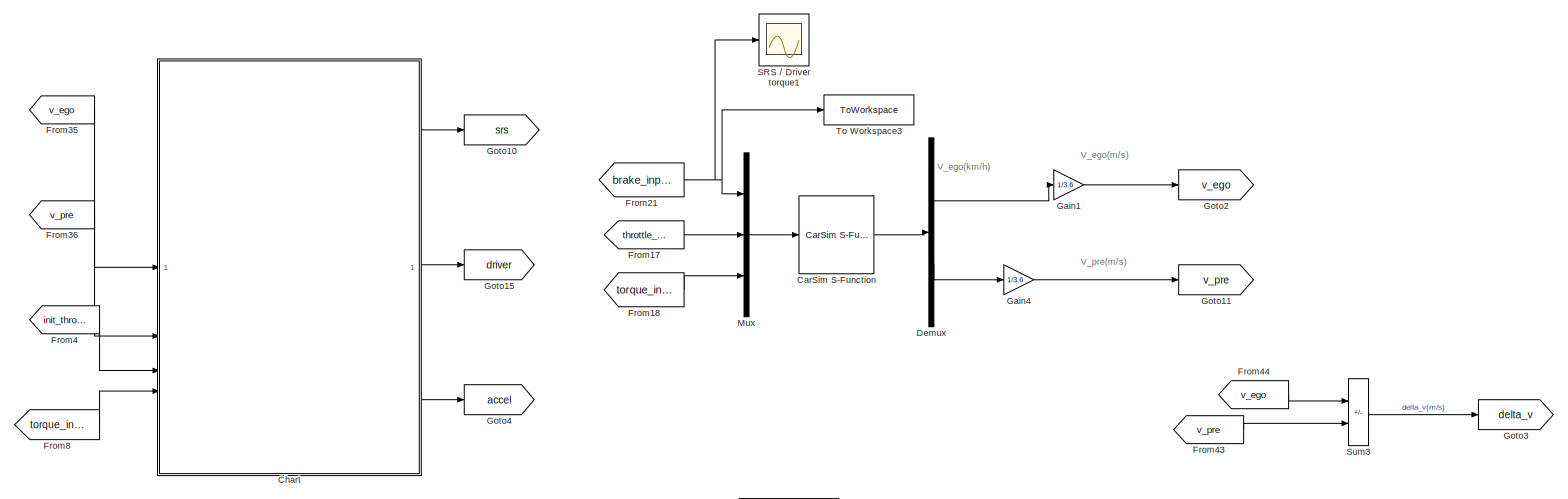
[diagram: root canvas - part 1/3, full width, top band]
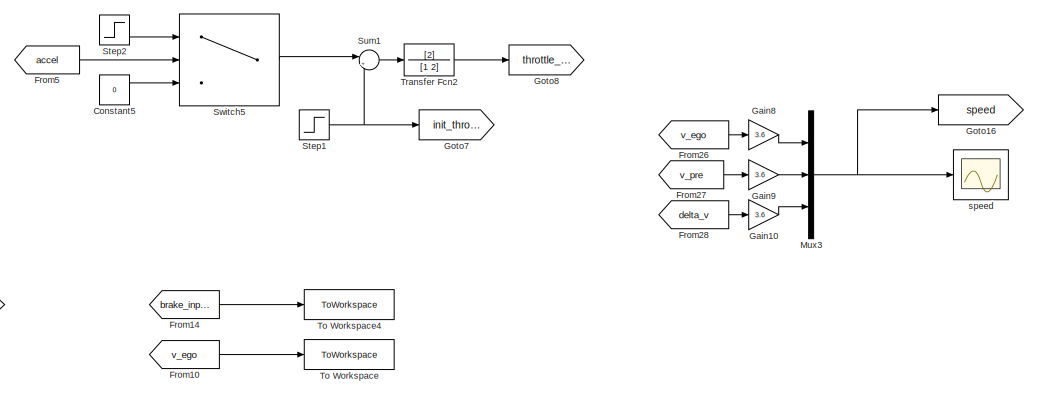
[diagram: root canvas - part 2/3, middle right region]
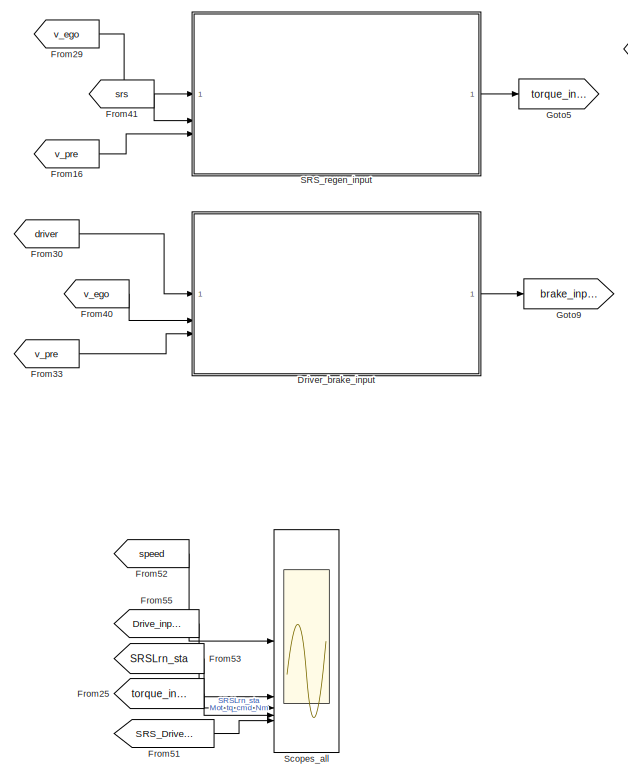
[diagram: root canvas - part 3/3, bottom left region]
MODEL slx_5a5e5886964d
KIND model
CONFIG AbsTol = 1e-6
CONFIG EnableMultiTasking = off
CONFIG FixedStep = 0.001
CONFIG InitFcn = R2D = 180/pi;
CONFIG MaxStep = auto
CONFIG MinStep = auto
CONFIG RelTol = 1e-3
CONFIG SampleTimeConstraint = Unconstrained
CONFIG SolverName = VariableStepAuto
CONFIG StartTime = 0
CONFIG StopTime = 100
BLOCK [Reference] CarSim S-Function  REF=Solver_SF/CarSim S-Function
  Priority = 1
  SourceBlock = Solver_SF/CarSim S-Function
  SourceType = Vehicle math model library
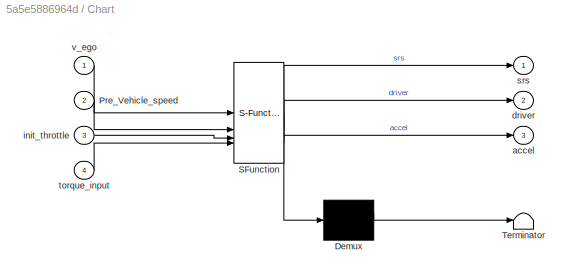
BLOCK [SubSystem] Chart
  ErrorFcn = Stateflow.Translate.translate
  PermitHierarchicalResolution = ExplicitOnly
  SFBlockType = Chart
  TreatAsAtomicUnit = on
BLOCK [Demux] Chart/ Demux 
  Outputs = 1
BLOCK [S-Function] Chart/ SFunction 
  EnableBusSupport = off
  FunctionName = sf_sfun
  PortCounts = [4 4]
  SFcnIsStateOwnerBlock = off
  SFunctionDeploymentMode = off
  Tag = Stateflow S-Function 2
BLOCK [Terminator] Chart/ Terminator 
BLOCK [Inport] Chart/Pre_Vehicle_speed
  Port = 2
BLOCK [Outport] Chart/accel
  Port = 3
BLOCK [Outport] Chart/driver
  Port = 2
BLOCK [Inport] Chart/init_throttle
  Port = 3
BLOCK [Outport] Chart/srs
BLOCK [Inport] Chart/torque_input
  Port = 4
BLOCK [Inport] Chart/v_ego
BLOCK [Constant] Constant5
  Value = 0
BLOCK [Demux] Demux
  Outputs = 2
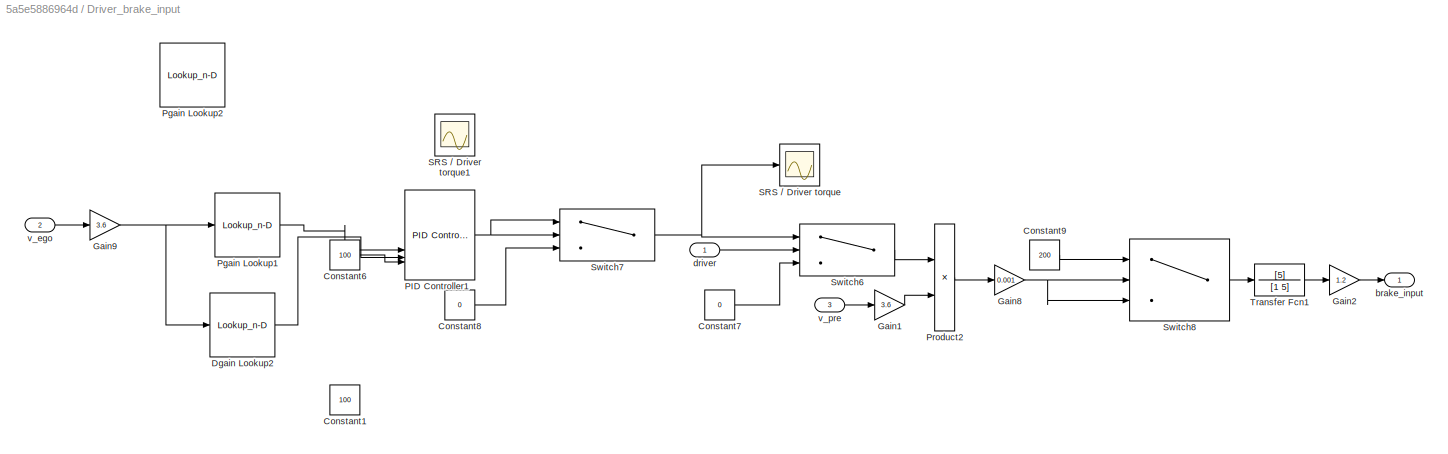
BLOCK [SubSystem] Driver_brake_input
BLOCK [Constant] Driver_brake_input/Constant1
  Value = 100
BLOCK [Constant] Driver_brake_input/Constant6
  Value = 100
BLOCK [Constant] Driver_brake_input/Constant7
  Value = 0
BLOCK [Constant] Driver_brake_input/Constant8
  Value = 0
BLOCK [Constant] Driver_brake_input/Constant9
  Value = 200
BLOCK [Lookup_n-D] Driver_brake_input/Dgain Lookup2
  BreakpointsForDimension1 = [0 10 20 30 40 50 60 70 80 90]
  InputPortMap = u0
  InternalRulePriority = Speed
  NumberOfTableDimensions = 1
  RndMeth = Simplest
  Table = [100 100 100 100 100 100 100 300 300 300]
BLOCK [Gain] Driver_brake_input/Gain1
  Gain = 3.6
BLOCK [Gain] Driver_brake_input/Gain2
  Gain = 1.2
BLOCK [Gain] Driver_brake_input/Gain8
  Gain = 0.001
BLOCK [Gain] Driver_brake_input/Gain9
  Gain = 3.6
BLOCK [Reference] Driver_brake_input/PID Controller1  REF=slpidlib/PID Controller
  SourceBlock = slpidlib/PID Controller
  SourceType = PID 1dof
BLOCK [Lookup_n-D] Driver_brake_input/Pgain Lookup1
  BreakpointsForDimension1 = [0 10 20 30 40 50 60 70 80 90]
  InputPortMap = u0
  InternalRulePriority = Speed
  NameLocation = top
  NumberOfTableDimensions = 1
  RndMeth = Simplest
  Table = [300 300 270 250 250 250 270 300 300 300]
BLOCK [Lookup_n-D] Driver_brake_input/Pgain Lookup2
  BreakpointsForDimension1 = [0 10 20 30 40 50 60 70 80 90]
  InputPortMap = u0
  InternalRulePriority = Speed
  NameLocation = top
  NumberOfTableDimensions = 1
  RndMeth = Simplest
  Table = [300 300 100 100 300 300 100 500 300 300]
BLOCK [Product] Driver_brake_input/Product2
  OutDataTypeStr = Inherit: Same as first input
  SaturateOnIntegerOverflow = on
BLOCK [Scope] Driver_brake_input/SRS // Driver torque
  Floating = off
  NumInputPorts = 1
  ScopeSpecificationString = Simulink.scopes.TimeScopeBlockCfg('CurrentConfiguration', extmgr.ConfigurationSet(extmgr.Configuration('Core','General UI',true),extmgr.Configuration('Core','Source UI',true),extmgr.Configuration('Sources','WiredSimulink',true,'DataLoggingSaveFormat','StructureWithTime','DataLoggingDecimation','1','DataLoggingDecimateData',true,'DataLoggingVariableName','ScopeData2'),extmgr.Configuration('Visuals'...<+1872ch>
BLOCK [Scope] Driver_brake_input/SRS // Driver torque1
  Floating = off
  NumInputPorts = 1
  ScopeSpecificationString = Simulink.scopes.TimeScopeBlockCfg('CurrentConfiguration', extmgr.ConfigurationSet(extmgr.Configuration('Core','General UI',true),extmgr.Configuration('Core','Source UI',true),extmgr.Configuration('Sources','WiredSimulink',true,'DataLoggingSaveFormat','StructureWithTime','DataLoggingDecimation','1','DataLoggingDecimateData',true,'DataLoggingVariableName','ScopeData1'),extmgr.Configuration('Visuals'...<+1860ch>
BLOCK [Switch] Driver_brake_input/Switch6
  Criteria = u2 ~= 0
  InputSameDT = off
  SaturateOnIntegerOverflow = off
BLOCK [Switch] Driver_brake_input/Switch7
  Criteria = u2 > Threshold
  InputSameDT = off
  SaturateOnIntegerOverflow = off
BLOCK [Switch] Driver_brake_input/Switch8
  InputSameDT = off
  SaturateOnIntegerOverflow = off
  Threshold = 200
BLOCK [TransferFcn] Driver_brake_input/Transfer Fcn1
  Denominator = [1 5]
  Numerator = [5]
BLOCK [Outport] Driver_brake_input/brake_input
BLOCK [Inport] Driver_brake_input/driver
BLOCK [Inport] Driver_brake_input/v_ego
  Port = 2
BLOCK [Inport] Driver_brake_input/v_pre
  Port = 3
BLOCK [From] From10
  GotoTag = v_ego
BLOCK [From] From14
  GotoTag = brake_input
BLOCK [From] From16
  GotoTag = v_pre
BLOCK [From] From17
  GotoTag = throttle_input
BLOCK [From] From18
  GotoTag = torque_input
BLOCK [From] From21
  GotoTag = brake_input
BLOCK [From] From25
  GotoTag = torque_input
BLOCK [From] From26
  GotoTag = v_ego
BLOCK [From] From27
  GotoTag = v_pre
BLOCK [From] From28
  GotoTag = delta_v
BLOCK [From] From29
  GotoTag = v_ego
BLOCK [From] From30
  GotoTag = driver
BLOCK [From] From33
  GotoTag = v_pre
BLOCK [From] From35
  GotoTag = v_ego
BLOCK [From] From36
  GotoTag = v_pre
BLOCK [From] From4
  GotoTag = init_throttle
BLOCK [From] From40
  GotoTag = v_ego
BLOCK [From] From41
  GotoTag = srs
BLOCK [From] From43
  GotoTag = v_pre
BLOCK [From] From44
  GotoTag = v_ego
BLOCK [From] From5
  GotoTag = accel
BLOCK [From] From51
  GotoTag = SRS_Driver_Sta
BLOCK [From] From52
  GotoTag = speed
BLOCK [From] From53
  GotoTag = SRSLrn_sta
BLOCK [From] From55
  GotoTag = Drive_input
BLOCK [From] From8
  GotoTag = torque_input
BLOCK [Gain] Gain1
  Gain = 1/3.6
BLOCK [Gain] Gain10
  Gain = 3.6
BLOCK [Gain] Gain4
  Gain = 1/3.6
BLOCK [Gain] Gain8
  Gain = 3.6
BLOCK [Gain] Gain9
  Gain = 3.6
BLOCK [Goto] Goto10
  GotoTag = srs
BLOCK [Goto] Goto11
  GotoTag = v_pre
BLOCK [Goto] Goto15
  GotoTag = driver
BLOCK [Goto] Goto16
  GotoTag = speed
BLOCK [Goto] Goto2
  GotoTag = v_ego
BLOCK [Goto] Goto3
  GotoTag = delta_v
BLOCK [Goto] Goto4
  GotoTag = accel
BLOCK [Goto] Goto5
  GotoTag = torque_input
BLOCK [Goto] Goto7
  GotoTag = init_throttle
BLOCK [Goto] Goto8
  GotoTag = throttle_input
BLOCK [Goto] Goto9
  GotoTag = brake_input
BLOCK [Mux] Mux
  DisplayOption = bar
  Inputs = 3
BLOCK [Mux] Mux3
  DisplayOption = bar
  Inputs = 3
BLOCK [Scope] SRS // Driver torque1
  Floating = off
  NumInputPorts = 1
  ScopeSpecificationString = Simulink.scopes.TimeScopeBlockCfg('CurrentConfiguration', extmgr.ConfigurationSet(extmgr.Configuration('Core','General UI',true),extmgr.Configuration('Core','Source UI',true),extmgr.Configuration('Sources','WiredSimulink',true,'DataLoggingSaveFormat','StructureWithTime','DataLoggingDecimation','1','DataLoggingDecimateData',true,'DataLoggingVariableName','ScopeData1'),extmgr.Configuration('Visuals'...<+1848ch>
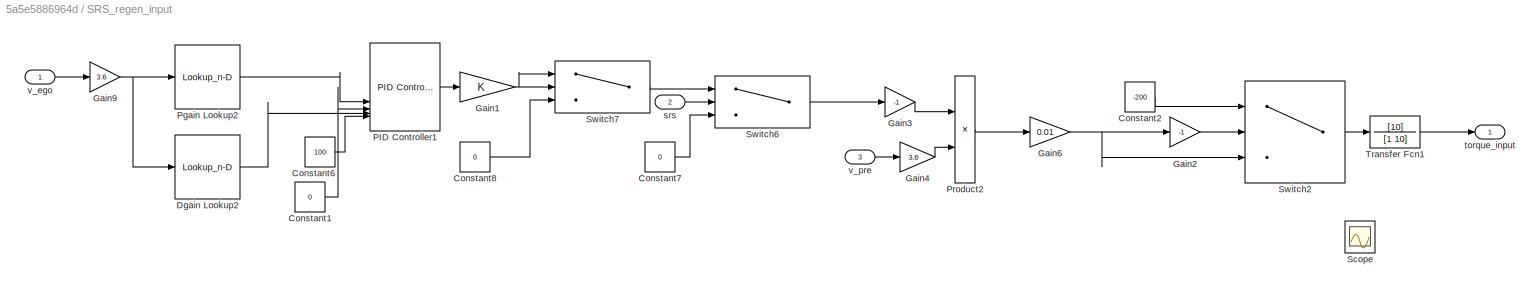
BLOCK [SubSystem] SRS_regen_input
BLOCK [Constant] SRS_regen_input/Constant1
  Value = 0
BLOCK [Constant] SRS_regen_input/Constant2
  Value = -200
BLOCK [Constant] SRS_regen_input/Constant6
  Value = 100
BLOCK [Constant] SRS_regen_input/Constant7
  Value = 0
BLOCK [Constant] SRS_regen_input/Constant8
  Value = 0
BLOCK [Lookup_n-D] SRS_regen_input/Dgain Lookup2
  BreakpointsForDimension1 = [0 10 20 30 40 50 60 70 80 90]
  InputPortMap = u0
  InternalRulePriority = Speed
  NumberOfTableDimensions = 1
  RndMeth = Simplest
  Table = [500 800 800 300 300 300 300 1000 1000 100]
BLOCK [Gain] SRS_regen_input/Gain1
BLOCK [Gain] SRS_regen_input/Gain2
  Gain = -1
BLOCK [Gain] SRS_regen_input/Gain3
  Gain = -1
BLOCK [Gain] SRS_regen_input/Gain4
  Gain = 3.6
BLOCK [Gain] SRS_regen_input/Gain6
  Gain = 0.01
BLOCK [Gain] SRS_regen_input/Gain9
  Gain = 3.6
BLOCK [Reference] SRS_regen_input/PID Controller1  REF=slpidlib/PID Controller
  SourceBlock = slpidlib/PID Controller
  SourceType = PID 1dof
BLOCK [Lookup_n-D] SRS_regen_input/Pgain Lookup2
  BreakpointsForDimension1 = [0 10 20 30 40 50 60 70 80 90]
  InputPortMap = u0
  InternalRulePriority = Speed
  NumberOfTableDimensions = 1
  RndMeth = Simplest
  Table = [800 800 800 300 300 500 500 800 800 200]
BLOCK [Product] SRS_regen_input/Product2
  OutDataTypeStr = Inherit: Same as first input
  SaturateOnIntegerOverflow = on
BLOCK [Scope] SRS_regen_input/Scope
  Floating = off
  NumInputPorts = 1
  ScopeSpecificationString = Simulink.scopes.TimeScopeBlockCfg('CurrentConfiguration', extmgr.ConfigurationSet(extmgr.Configuration('Core','General UI',true),extmgr.Configuration('Core','Source UI',true),extmgr.Configuration('Sources','WiredSimulink',true,'DataLoggingVariableName','ScopeData3'),extmgr.Configuration('Visuals','Time Domain',true,'SerializedDisplays',{struct('MinYLimReal','-156.42811','MaxYLimReal','17.3809','YL...<+1374ch>
BLOCK [Switch] SRS_regen_input/Switch2
  InputSameDT = off
  SaturateOnIntegerOverflow = off
  Threshold = 200
BLOCK [Switch] SRS_regen_input/Switch6
  Criteria = u2 ~= 0
  InputSameDT = off
  SaturateOnIntegerOverflow = off
BLOCK [Switch] SRS_regen_input/Switch7
  Criteria = u2 > Threshold
  InputSameDT = off
  SaturateOnIntegerOverflow = off
BLOCK [TransferFcn] SRS_regen_input/Transfer Fcn1
  Denominator = [1 10]
  Numerator = [10]
BLOCK [Inport] SRS_regen_input/srs
  Port = 2
BLOCK [Outport] SRS_regen_input/torque_input
BLOCK [Inport] SRS_regen_input/v_ego
BLOCK [Inport] SRS_regen_input/v_pre
  Port = 3
BLOCK [Scope] Scopes_all
  Floating = off
  NumInputPorts = 6
  ScopeSpecificationString = Simulink.scopes.TimeScopeBlockCfg('CurrentConfiguration', extmgr.ConfigurationSet(extmgr.Configuration('Core','General UI',true,'FigureColor',[0 0 0]),extmgr.Configuration('Core','Source UI',true),extmgr.Configuration('Sources','WiredSimulink',true,'DataLoggingSaveFormat','StructureWithTime','DataLoggingDecimation','1','DataLoggingDecimateData',true,'DataLoggingVariableName','ScopeData1'),extmgr.C...<+9566ch>
BLOCK [Step] Step1
  After = 0
  Before = 0.2
  SampleTime = 0
  Time = 25
BLOCK [Step] Step2
  After = 0.2
  SampleTime = 0
  Time = 30
BLOCK [Sum] Sum1
  Inputs = |++
BLOCK [Sum] Sum3
  IconShape = rectangular
  Inputs = -+
BLOCK [Switch] Switch5
  Criteria = u2 ~= 0
  InputSameDT = off
  SaturateOnIntegerOverflow = off
BLOCK [ToWorkspace] To Workspace
  FixptAsFi = on
  MaxDataPoints = inf
  SampleTime = -1
  SaveFormat = Timeseries
  VariableName = v_ego
BLOCK [ToWorkspace] To Workspace3
  FixptAsFi = on
  MaxDataPoints = inf
  SampleTime = -1
  SaveFormat = Timeseries
  VariableName = simout
BLOCK [ToWorkspace] To Workspace4
  FixptAsFi = on
  MaxDataPoints = inf
  SampleTime = -1
  SaveFormat = Timeseries
  VariableName = brake
BLOCK [TransferFcn] Transfer Fcn2
  Denominator = [1 2]
  Numerator = [2]
BLOCK [Scope] speed
  Floating = off
  NumInputPorts = 1
  ScopeSpecificationString = Simulink.scopes.TimeScopeBlockCfg('CurrentConfiguration', extmgr.ConfigurationSet(extmgr.Configuration('Core','General UI',true,'DisplayFullSourceName',true),extmgr.Configuration('Core','Source UI',true),extmgr.Configuration('Sources','WiredSimulink',true,'DataLoggingSaveFormat','StructureWithTime','DataLoggingDecimation','1','DataLoggingDecimateData',true,'DataLoggingVariableName','ScopeData1'),e...<+2017ch>
ANNOTATION (root): V_ego(km/h)
ANNOTATION (root): V_ego(m/s)
ANNOTATION (root): V_pre(m/s)
LINE CarSim S-Function:1 -> Demux:1
LINE Chart:1 -> Goto10:1
LINE Chart:2 -> Goto15:1
LINE Chart:3 -> Goto4:1
LINE Constant5:1 -> Switch5:3
LINE Demux:1 -> Gain1:1
LINE Demux:2 -> Gain4:1
LINE Driver_brake_input/Constant6:1 -> Driver_brake_input/PID Controller1:4
LINE Driver_brake_input/Constant7:1 -> Driver_brake_input/Switch6:3
LINE Driver_brake_input/Constant8:1 -> Driver_brake_input/Switch7:3
LINE Driver_brake_input/Constant9:1 -> Driver_brake_input/Switch8:1
LINE Driver_brake_input/Dgain Lookup2:1 -> Driver_brake_input/PID Controller1:3
LINE Driver_brake_input/Gain1:1 -> Driver_brake_input/Product2:2
LINE Driver_brake_input/Gain2:1 -> Driver_brake_input/brake_input:1
NET Driver_brake_input/Gain8:1 -> Driver_brake_input/Switch8:2, Driver_brake_input/Switch8:3
NET Driver_brake_input/Gain9:1 -> Driver_brake_input/Dgain Lookup2:1, Driver_brake_input/Pgain Lookup1:1
NET Driver_brake_input/PID Controller1:1 -> Driver_brake_input/Switch7:1, Driver_brake_input/Switch7:2
LINE Driver_brake_input/Pgain Lookup1:1 -> Driver_brake_input/PID Controller1:2
LINE Driver_brake_input/Product2:1 -> Driver_brake_input/Gain8:1
LINE Driver_brake_input/Switch6:1 -> Driver_brake_input/Product2:1
NET Driver_brake_input/Switch7:1 -> Driver_brake_input/SRS // Driver torque:1, Driver_brake_input/Switch6:1
LINE Driver_brake_input/Switch8:1 -> Driver_brake_input/Transfer Fcn1:1
LINE Driver_brake_input/Transfer Fcn1:1 -> Driver_brake_input/Gain2:1
LINE Driver_brake_input/driver:1 -> Driver_brake_input/Switch6:2
LINE Driver_brake_input/v_ego:1 -> Driver_brake_input/Gain9:1
LINE Driver_brake_input/v_pre:1 -> Driver_brake_input/Gain1:1
LINE Driver_brake_input:1 -> Goto9:1
LINE From10:1 -> To Workspace:1
LINE From14:1 -> To Workspace4:1
LINE From16:1 -> SRS_regen_input:3
LINE From17:1 -> Mux:2
LINE From18:1 -> Mux:3
NET From21:1 -> Mux:1, SRS // Driver torque1:1, To Workspace3:1
LINE From25:1 -> Scopes_all:5
LINE From26:1 -> Gain8:1
LINE From27:1 -> Gain9:1
LINE From28:1 -> Gain10:1
LINE From29:1 -> SRS_regen_input:1
LINE From30:1 -> Driver_brake_input:1
LINE From33:1 -> Driver_brake_input:3
LINE From35:1 -> Chart:1
LINE From36:1 -> Chart:2
LINE From40:1 -> Driver_brake_input:2
LINE From41:1 -> SRS_regen_input:2
LINE From43:1 -> Sum3:2
LINE From44:1 -> Sum3:1
LINE From4:1 -> Chart:3
LINE From51:1 -> Scopes_all:6
LINE From52:1 -> Scopes_all:1
LINE From53:1 -> Scopes_all:4
LINE From55:1 -> Scopes_all:3
LINE From5:1 -> Switch5:2
LINE From8:1 -> Chart:4
LINE Gain10:1 -> Mux3:3
LINE Gain1:1 -> Goto2:1
LINE Gain4:1 -> Goto11:1
LINE Gain8:1 -> Mux3:1
LINE Gain9:1 -> Mux3:2
NET Mux3:1 -> Goto16:1, speed:1
LINE Mux:1 -> CarSim S-Function:1
LINE SRS_regen_input/Constant1:1 -> SRS_regen_input/PID Controller1:3
LINE SRS_regen_input/Constant2:1 -> SRS_regen_input/Switch2:1
LINE SRS_regen_input/Constant6:1 -> SRS_regen_input/PID Controller1:5
LINE SRS_regen_input/Constant7:1 -> SRS_regen_input/Switch6:3
LINE SRS_regen_input/Constant8:1 -> SRS_regen_input/Switch7:3
LINE SRS_regen_input/Dgain Lookup2:1 -> SRS_regen_input/PID Controller1:4
NET SRS_regen_input/Gain1:1 -> SRS_regen_input/Switch7:1, SRS_regen_input/Switch7:2
LINE SRS_regen_input/Gain2:1 -> SRS_regen_input/Switch2:2
LINE SRS_regen_input/Gain3:1 -> SRS_regen_input/Product2:1
LINE SRS_regen_input/Gain4:1 -> SRS_regen_input/Product2:2
NET SRS_regen_input/Gain6:1 -> SRS_regen_input/Gain2:1, SRS_regen_input/Switch2:3
NET SRS_regen_input/Gain9:1 -> SRS_regen_input/Dgain Lookup2:1, SRS_regen_input/Pgain Lookup2:1
LINE SRS_regen_input/PID Controller1:1 -> SRS_regen_input/Gain1:1
LINE SRS_regen_input/Pgain Lookup2:1 -> SRS_regen_input/PID Controller1:2
LINE SRS_regen_input/Product2:1 -> SRS_regen_input/Gain6:1
LINE SRS_regen_input/Switch2:1 -> SRS_regen_input/Transfer Fcn1:1
LINE SRS_regen_input/Switch6:1 -> SRS_regen_input/Gain3:1
LINE SRS_regen_input/Switch7:1 -> SRS_regen_input/Switch6:1
LINE SRS_regen_input/Transfer Fcn1:1 -> SRS_regen_input/torque_input:1
LINE SRS_regen_input/srs:1 -> SRS_regen_input/Switch6:2
LINE SRS_regen_input/v_ego:1 -> SRS_regen_input/Gain9:1
LINE SRS_regen_input/v_pre:1 -> SRS_regen_input/Gain4:1
LINE SRS_regen_input:1 -> Goto5:1
NET Step1:1 -> Goto7:1, Sum1:2
LINE Step2:1 -> Switch5:1
LINE Sum1:1 -> Transfer Fcn2:1
LINE Sum3:1 -> Goto3:1
LINE Switch5:1 -> Sum1:1
LINE Transfer Fcn2:1 -> Goto8:1
note: NET lines group one-source signal fan-out (src -> all destinations, sorted); 1:1 wires keep LINE
CHART Chart states=4 transitions=6
  STATE_LABEL 'SRS_ON\n\nen:\ndriver = 0;\nsrs = 1;\nSRSCnt=1;\nSRSCheck =+1;\ndu:\nSRSCnt=SRSCnt+1;\nex:\nSRSCnt=0;\n'
  STATE_LABEL 'OFF\n\nen:\ndriver = 0;\nsrs =0;\naccel = 0;\n'
  STATE_LABEL 'INIT\n\nen:\ndriver = 0;\nsrs =0;\naccel = 0;\nSRSCheck = 0;\nDriverCheck = 0;\nDriverCnt=0;\n'
  STATE_LABEL 'Driver_ON\n\nen:\ndriver = 1;\nsrs = 0;\nDriverCnt=1;\nDriverCheck = DriverCheck +1;\ndu:\nDriverCnt=DriverCnt+1;\nex:\nDriverCnt=0;\n'
CHART  states=0 transitions=0
